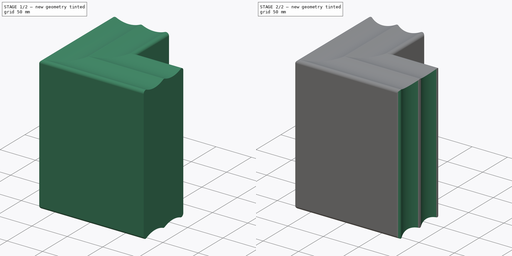
[diagram: build sequence overview — one tinted view per stage of 2, left to right]
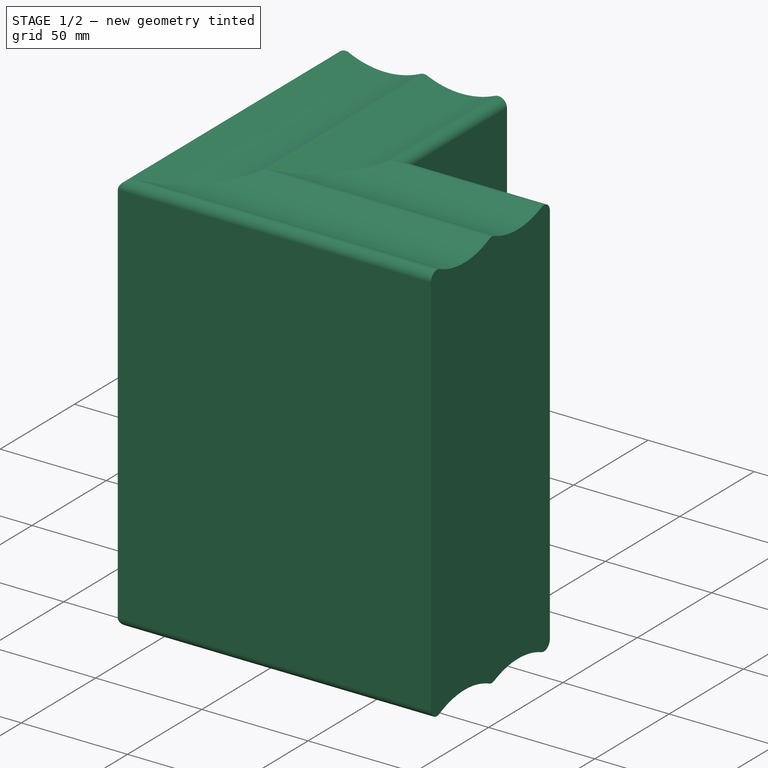
[diagram: stage 1 of 2 — iso view after this stage's code; geometry added in this stage tinted green]
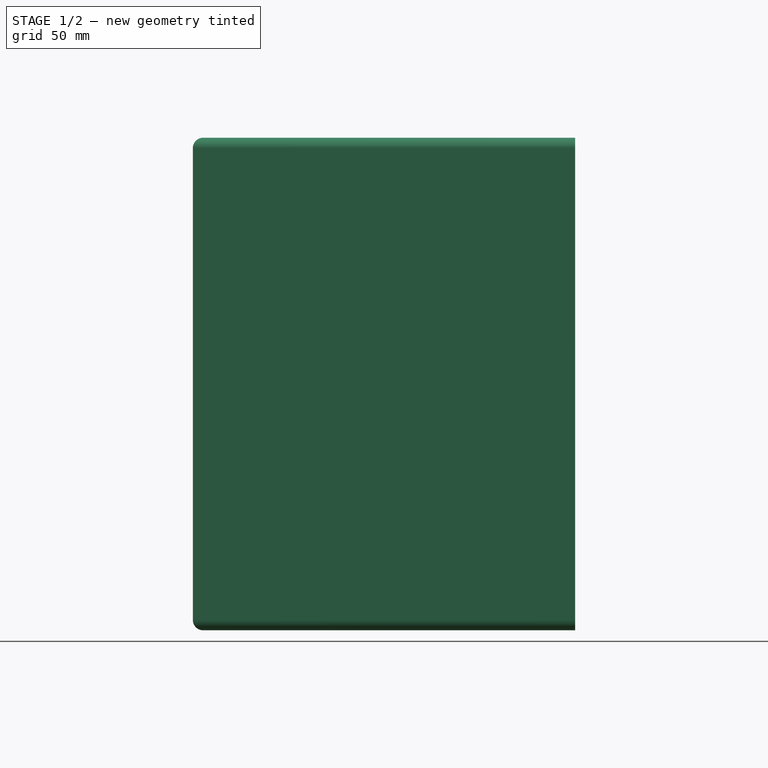
[diagram: stage 1 of 2 — front view after this stage's code; geometry added in this stage tinted green]
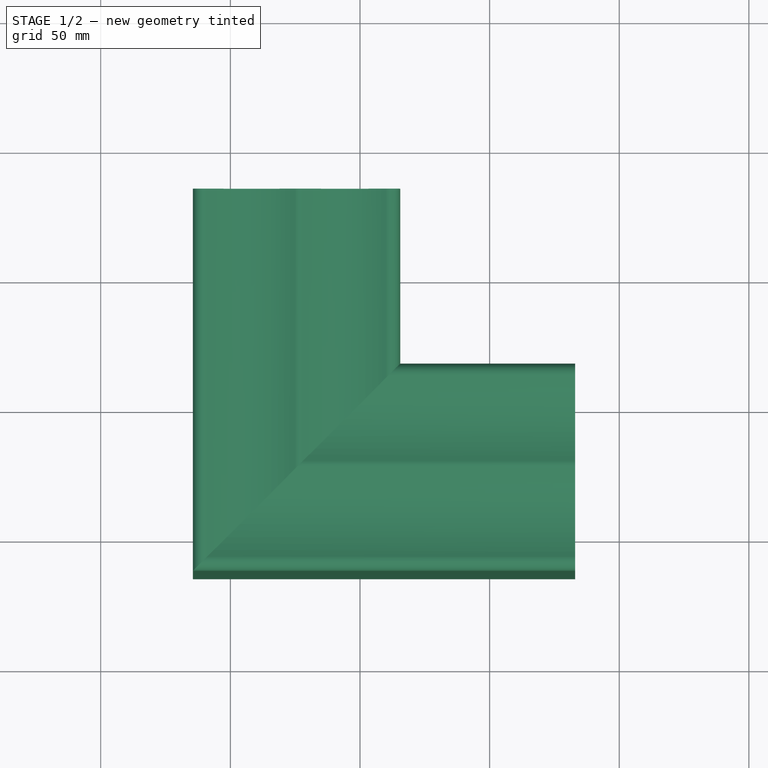
[diagram: stage 1 of 2 — top view after this stage's code; geometry added in this stage tinted green]
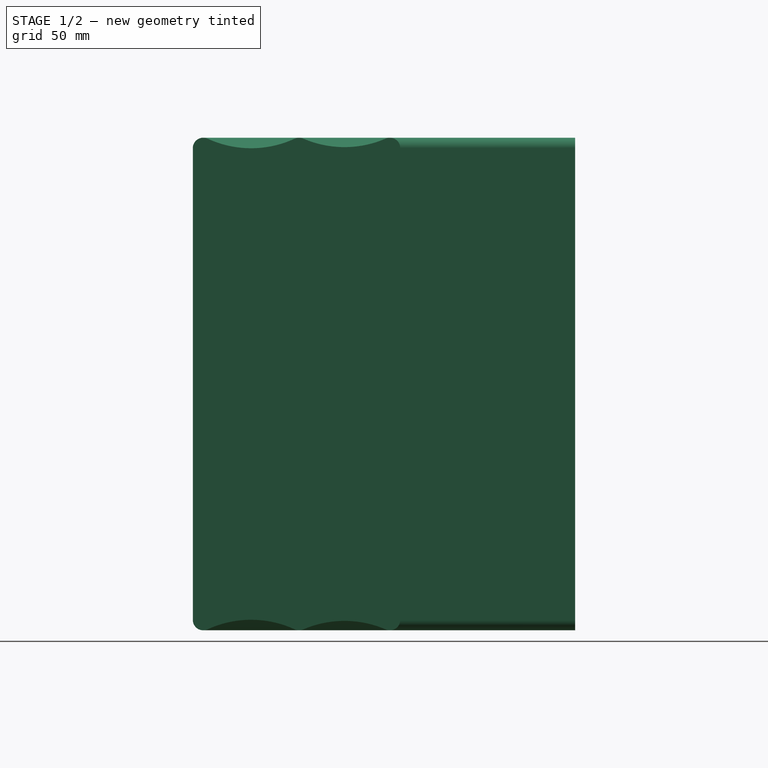
[diagram: stage 1 of 2 — right view after this stage's code; geometry added in this stage tinted green]
FCSTD DOCUMENT  (FreeCAD 0.22R37898 (Git))
Label: esquina para baño
License: All rights reserved
objects: Sketcher::SketchObject×3, PartDesign::Plane×1, PartDesign::AdditivePipe×1, PartDesign::Pocket×1, PartDesign::Body×1
note: 9 computed .brp shape members not serialized (recipe doc carries the construction recipe); baked Part::Feature solids carry a one-line shape summary decoded from their .brp

FEATURE [Sketcher::SketchObject] Sketch
  AttachmentSupport = -> [XY_Plane]
  FullyConstrained = true
  MapMode = 5
  sketch-geometry (8):
    g0: LineSegment StartX=0 StartY=0 StartZ=0 EndX=133 EndY=0 EndZ=0
    g1: LineSegment StartX=133 StartY=0 StartZ=0 EndX=133 EndY=53 EndZ=0
    g2: LineSegment StartX=0 StartY=133 StartZ=0 EndX=0 EndY=0 EndZ=0
    g3: LineSegment StartX=53 StartY=133 StartZ=0 EndX=53 EndY=53 EndZ=0
    g4: LineSegment StartX=0 StartY=133 StartZ=0 EndX=53 EndY=133 EndZ=0
    g5: LineSegment StartX=53 StartY=53 StartZ=0 EndX=133 EndY=53 EndZ=0
    g6: LineSegment StartX=26.5 StartY=133 StartZ=0 EndX=26.5 EndY=26.5 EndZ=0
    g7: LineSegment StartX=26.5 StartY=26.5 StartZ=0 EndX=133 EndY=26.5 EndZ=0
  constraints (22):
    c: Coincident(g0,g1)
    c: Coincident(g2,g0)
    c: Horizontal(g0)
    c: Vertical(g1)
    c: Vertical(g2)
    c: Distance(g1,g2) = 133
    c: Distance(g0,g2) = 133
    c: Coincident(g0,g-1)
    c: Vertical(g3)
    c: Distance(g3,g3) = 80
    c: Coincident(g4,g2)
    c: Coincident(g4,g3)
    c: Horizontal(g4)
    c: Coincident(g5,g3)
    c: Coincident(g5,g1)
    c: Horizontal(g5)
    c: DistanceX(g5,g5) = 80
    c: Symmetric(g1,g0,g7)
    c: Symmetric(g3,g2,g6)
    c: PointOnObject(g6,g4)
    c: PointOnObject(g7,g1)
    c: Coincident(g6,g7)
FEATURE [PartDesign::Plane] DatumPlane
  AttachmentSupport = -> [Sketch,YZ_Plane]
  Length = 224.631
  MapMode = 6
  Placement = pos=(133,26.5,0) rot=(0,1,0;1.5708rad)
  ResizeMode = 0
  Width = 192.436
FEATURE [Sketcher::SketchObject] Sketch001
  AttachmentSupport = -> [DatumPlane]
  FullyConstrained = false
  MapMode = 5
  Placement = pos=(133,26.5,0) rot=(0,1,0;1.5708rad)
  sketch-geometry (16):
    g0: LineSegment StartX=-97.2804 StartY=39.0621 StartZ=0 EndX=-97.2804 EndY=-40.9379 EndZ=0
    g1: LineSegment StartX=-93.2804 StartY=-40.9647 StartZ=0 EndX=88.7196 EndY=-40.9647 EndZ=0
    g2: LineSegment StartX=92.7196 StartY=-40.9647 StartZ=0 EndX=92.7196 EndY=39.0186 EndZ=0
    g3: LineSegment StartX=88.7196 StartY=39.0353 StartZ=0 EndX=-93.2804 EndY=39.0353 EndZ=0
    g4: LineSegment StartX=-97.2804 StartY=-40.9379 StartZ=0 EndX=92.7196 EndY=39.0186 EndZ=0
    g5: LineSegment StartX=-97.2804 StartY=39.0621 StartZ=0 EndX=0 EndY=0 EndZ=0
    g6: ArcOfCircle CenterX=-93.2804 CenterY=35.0353 CenterZ=0 NormalX=0 NormalY=0 NormalZ=1 AngleXU=0 Radius=4 StartAngle=1.5708 EndAngle=3.55107
    g7: ArcOfCircle CenterX=-93.2804 CenterY=0 CenterZ=0 NormalX=0 NormalY=0 NormalZ=1 AngleXU=0 Radius=4 StartAngle=2.73212 EndAngle=3.5751
    g8: ArcOfCircle CenterX=-93.2804 CenterY=-36.9647 CenterZ=0 NormalX=0 NormalY=0 NormalZ=1 AngleXU=0 Radius=4 StartAngle=2.70809 EndAngle=4.71239
    g9: ArcOfCircle CenterX=88.7196 CenterY=35.0353 CenterZ=0 NormalX=0 NormalY=0 NormalZ=1 AngleXU=0 Radius=4 StartAngle=5.87371 EndAngle=7.85398
    g10: ArcOfCircle CenterX=88.7196 CenterY=0 CenterZ=0 NormalX=0 NormalY=0 NormalZ=1 AngleXU=0 Radius=4 StartAngle=5.84968 EndAngle=6.69266
    g11: ArcOfCircle CenterX=88.7196 CenterY=-36.9647 CenterZ=0 NormalX=0 NormalY=0 NormalZ=1 AngleXU=0 Radius=4 StartAngle=4.71239 EndAngle=6.71669
    g12: ArcOfCircle CenterX=129.082 CenterY=17.5176 CenterZ=0 NormalX=0 NormalY=0 NormalZ=1 AngleXU=0 Radius=40 StartAngle=2.73212 EndAngle=3.55107
    g13: ArcOfCircle CenterX=128.65 CenterY=-18.4824 CenterZ=0 NormalX=0 NormalY=0 NormalZ=1 AngleXU=0 Radius=40 StartAngle=2.70809 EndAngle=3.5751
    g14: ArcOfCircle CenterX=-133.643 CenterY=17.5176 CenterZ=0 NormalX=0 NormalY=0 NormalZ=1 AngleXU=0 Radius=40 StartAngle=5.87371 EndAngle=6.69266
    g15: ArcOfCircle CenterX=-133.21 CenterY=-18.4824 CenterZ=0 NormalX=0 NormalY=0 NormalZ=1 AngleXU=0 Radius=40 StartAngle=5.84968 EndAngle=6.71669
  constraints (45):
    c: Vertical(g0)
    c: Vertical(g2)
    c: Horizontal(g1)
    c: Horizontal(g3)
    c: Distance(g0,g2) = 190
    c: Distance(g0,g0) = 80
    c: Coincident(g4,g0)
    c: Coincident(g4,g2)
    c: Coincident(g5,g0)
    c: PointOnObject(g5,g4)
    c: Coincident(g5,g-1)
    c: Diameter(g6) = 8
    c: Equal(g9,g10)
    c: Equal(g10,g11)
    c: Equal(g11,g8)
    c: Equal(g8,g7)
    c: Equal(g7,g6)
    c: Distance(g5,g5) = 104.83
    c: PointOnObject(g7,g-1)
    c: Tangent(g7,g0)
    c: Tangent(g8,g0)
    c: Tangent(g6,g0)
    c: Tangent(g9,g2)
    c: PointOnObject(g10,g-1)
    c: Tangent(g10,g2)
    c: Tangent(g11,g2)
    c: Diameter(g15) = 80
    c: Equal(g15,g14)
    c: Equal(g14,g13)
    c: Equal(g13,g12)
    c: Tangent(g7,g15) = 1.5708
    c: Tangent(g7,g14) = 1.5708
    c: Tangent(g15,g8) = 1.5708
    c: Tangent(g14,g6) = 1.5708
    c: Tangent(g12,g9) = 1.5708
    c: Tangent(g13,g10) = 1.5708
    c: Tangent(g12,g10) = 1.5708
    c: Tangent(g13,g11) = 1.5708
    c: Tangent(g1,g8) = -1.5708
    c: Tangent(g1,g11) = -1.5708
    c: Tangent(g3,g9) = -1.5708
    c: Tangent(g3,g6) = -1.5708
    c: Angle(g5,g4) = 0.780162
    c: Distance(g1,g3) = 80
    c: Block(g3)
FEATURE [Sketcher::SketchObject] Sketch002
  AttachmentSupport = -> [XY_Plane]
  FullyConstrained = false
  MapMode = 5
  sketch-geometry (27):
    g0: LineSegment StartX=132.994 StartY=61.623 StartZ=0 EndX=133.002 EndY=60.8636 EndZ=0
    g1: LineSegment StartX=-10.6392 StartY=132.805 StartZ=0 EndX=62.3608 EndY=132.805 EndZ=0
    g2: LineSegment StartX=-14.6392 StartY=128.805 StartZ=0 EndX=-14.6392 EndY=-14.5652 EndZ=0
    g3: LineSegment StartX=128.048 StartY=-14.5652 StartZ=0 EndX=-14.6392 EndY=-14.5652 EndZ=0
    g4: ArcOfCircle CenterX=-10.6392 CenterY=128.805 CenterZ=0 NormalX=0 NormalY=0 NormalZ=1 AngleXU=0 Radius=4 StartAngle=1.03435 EndAngle=3.14159
    g5: LineSegment StartX=129.015 StartY=65.8348 StartZ=0 EndX=66.3608 EndY=65.8348 EndZ=0
    g6: LineSegment StartX=66.3608 StartY=128.805 StartZ=0 EndX=66.3608 EndY=65.8348 EndZ=0
    g7: ArcOfCircle CenterX=62.3608 CenterY=128.805 CenterZ=0 NormalX=0 NormalY=0 NormalZ=1 AngleXU=0 Radius=4 StartAngle=-2.7e-15 EndAngle=2.01445
    g8: ArcOfCircle CenterX=129.015 CenterY=61.8348 CenterZ=0 NormalX=0 NormalY=0 NormalZ=1 AngleXU=0 Radius=4 StartAngle=5.87794 EndAngle=7.85398
    g9: ArcOfCircle CenterX=128.048 CenterY=-10.5652 CenterZ=0 NormalX=0 NormalY=0 NormalZ=1 AngleXU=0 Radius=4 StartAngle=4.71239 EndAngle=6.68133
    g10: ArcOfCircle CenterX=129.357 CenterY=26.3814 CenterZ=0 NormalX=0 NormalY=0 NormalZ=1 AngleXU=0 Radius=4 StartAngle=5.81419 EndAngle=6.76561
    g11: ArcOfCircle CenterX=26.5947 CenterY=128.805 CenterZ=0 NormalX=0 NormalY=0 NormalZ=1 AngleXU=0 Radius=4 StartAngle=1.20365 EndAngle=1.96229
    g12: LineSegment StartX=-50.7172 StartY=26.4425 StartZ=0 EndX=200.537 EndY=26.3572 EndZ=0
    g13: LineSegment StartX=26.6084 StartY=167.404 StartZ=0 EndX=26.5203 EndY=-81.551 EndZ=0
    g14: ArcOfCircle CenterX=169.451 CenterY=44.488 CenterZ=0 NormalX=0 NormalY=0 NormalZ=1 AngleXU=0 Radius=40 StartAngle=5.76595 EndAngle=8.56679
    g15: ArcOfCircle CenterX=168.606 CenterY=6.4939 CenterZ=0 NormalX=0 NormalY=0 NormalZ=1 AngleXU=0 Radius=40 StartAngle=2.6726 EndAngle=3.53973
    g16: ArcOfCircle CenterX=8.60899 CenterY=169.026 CenterZ=0 NormalX=0 NormalY=0 NormalZ=1 AngleXU=0 Radius=40.0593 StartAngle=1.10766 EndAngle=4.06546
    g17: LineSegment StartX=128.048 StartY=-14.5652 StartZ=0 EndX=142.386 EndY=-23.7136 EndZ=0
    g18: ArcOfCircle CenterX=168.606 CenterY=6.4939 CenterZ=0 NormalX=0 NormalY=0 NormalZ=1 AngleXU=0 Radius=40 StartAngle=3.99753 EndAngle=6.75598
    g19: LineSegment StartX=129.015 StartY=65.8348 StartZ=0 EndX=143.292 EndY=74.7492 EndZ=0
    g20: ArcOfCircle CenterX=169.451 CenterY=44.488 CenterZ=0 NormalX=0 NormalY=0 NormalZ=1 AngleXU=0 Radius=40 StartAngle=2.73635 EndAngle=3.55996
    g21: LineSegment StartX=-14.6392 StartY=128.805 StartZ=0 EndX=-15.5364 EndY=137.061 EndZ=0
    g22: LineSegment StartX=66.3608 StartY=128.805 StartZ=0 EndX=68.656 EndY=137.25 EndZ=0
    g23: ArcOfCircle CenterX=44.4939 CenterY=169.133 CenterZ=0 NormalX=0 NormalY=0 NormalZ=1 AngleXU=0 Radius=40.0042 StartAngle=5.36089 EndAngle=8.32036
    g24: ArcOfCircle CenterX=44.4728 CenterY=169.116 CenterZ=0 NormalX=0 NormalY=0 NormalZ=1 AngleXU=0 Radius=40.1032 StartAngle=4.28994 EndAngle=5.12744
    g25: ArcOfCircle CenterX=7.95527 CenterY=168.931 CenterZ=0 NormalX=0 NormalY=0 NormalZ=1 AngleXU=0 Radius=40.2482 StartAngle=4.28862 EndAngle=5.15156
    g26: Circle CenterX=-12.0039 CenterY=-11.9859 CenterZ=0 NormalX=0 NormalY=0 NormalZ=1 AngleXU=0 Radius=2.5
  constraints (52):
    c: Vertical(g2)
    c: Horizontal(g3)
    c: Coincident(g2,g3)
    c: Horizontal(g5)
    c: Vertical(g6)
    c: Coincident(g6,g5)
    c: Equal(g11,g7)
    c: Equal(g7,g4)
    c: Diameter(g11) = 8
    c: Equal(g8,g10)
    c: Equal(g10,g9)
    c: Diameter(g8) = 8
    c: PointOnObject(g10,g12)
    c: Tangent(g10,g0)
    c: PointOnObject(g11,g13)
    c: Tangent(g11,g1)
    c: Equal(g15,g14)
    c: Diameter(g14) = 80
    c: Tangent(g14,g8)
    c: Tangent(g16,g11)
    c: Coincident(g18,g14)
    c: Coincident(g10,g20) = 1.5708
    c: Tangent(g10,g15) = 1.5708
    c: Tangent(g9,g3) = 1.5708
    c: Coincident(g17,g3)
    c: Equal(g15,g18)
    c: Coincident(g18,g17)
    c: Coincident(g15,g18)
    c: Tangent(g15,g9) = 1.5708
    c: Coincident(g19,g5)
    c: Equal(g14,g20)
    c: Coincident(g14,g19)
    c: Coincident(g14,g20)
    c: Tangent(g8,g5) = -1.5708
    c: Tangent(g1,g4) = 1.5708
    c: Tangent(g1,g7) = 1.5708
    c: Coincident(g21,g2)
    c: Tangent(g4,g2) = -1.5708
    c: Coincident(g16,g23)
    c: Coincident(g16,g21)
    c: Coincident(g22,g6)
    c: Tangent(g7,g6) = 1.5708
    c: Coincident(g23,g22)
    c: Coincident(g24,g7) = 1.5708
    c: Coincident(g11,g25)
    c: Coincident(g11,g24)
    c: Coincident(g25,g4)
    c: Coincident(g20,g8)
    c: Distance(g3,g5) = 80.4
    c: Distance(g6,g2) = 81
    c: Horizontal(g1)
    c: Diameter(g26) = 5
FEATURE [PartDesign::AdditivePipe] AdditivePipe
  AuxilleryCurvelinear = true
  AuxillerySpineTangent = false
  Binormal = (0,0,0)
  Mode = 0
  Placement = pos=(133,26.5,0) rot=(0,1,0;1.5708rad)
  Profile = -> Sketch001
  Refine = true
  Spine = -> Sketch [Edge4,Edge3]
  SpineTangent = false
  Suppressed = false
  Transformation = 0
  Transition = 1
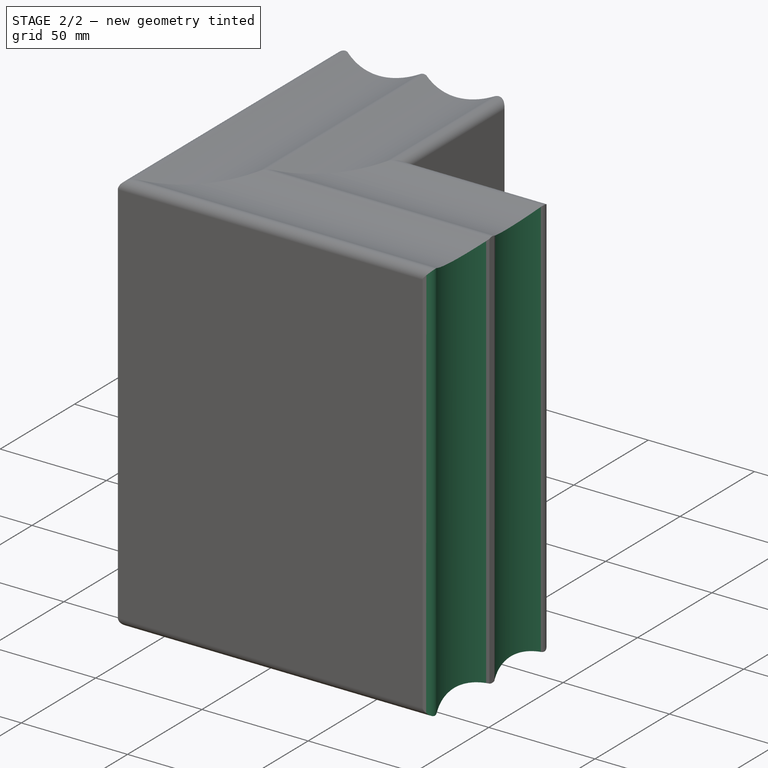
[diagram: stage 2 of 2 — iso view after this stage's code; geometry added in this stage tinted green]
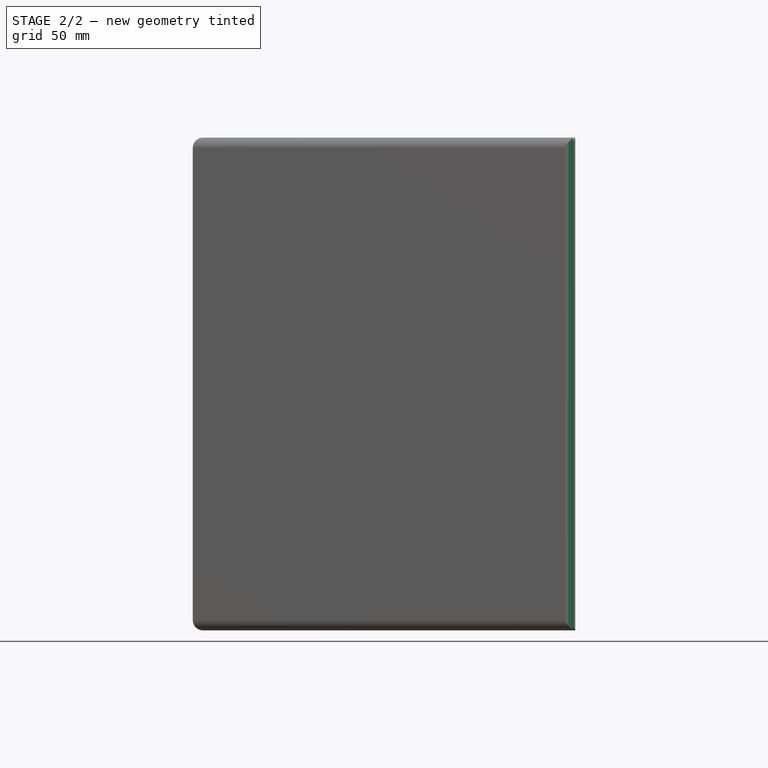
[diagram: stage 2 of 2 — front view after this stage's code; geometry added in this stage tinted green]
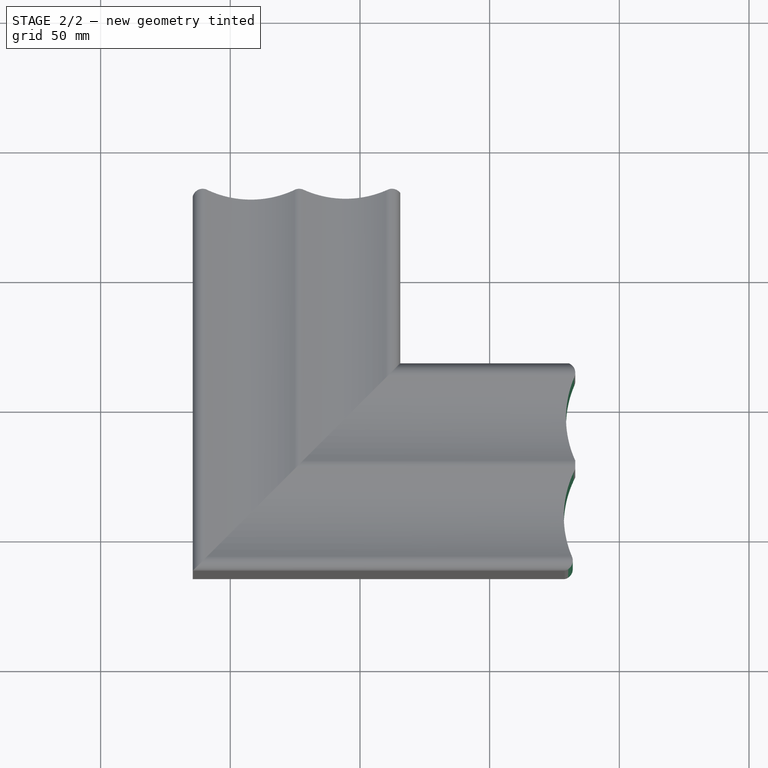
[diagram: stage 2 of 2 — top view after this stage's code; geometry added in this stage tinted green]
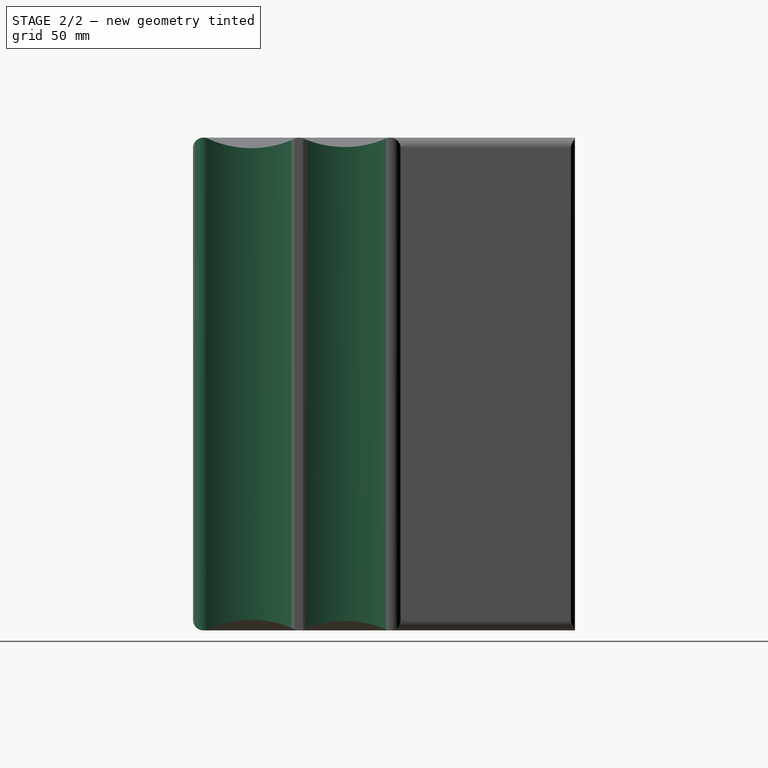
[diagram: stage 2 of 2 — right view after this stage's code; geometry added in this stage tinted green]
FEATURE [PartDesign::Pocket] Pocket
  BaseFeature = -> AdditivePipe
  Direction = (1,1,1)
  Length = 5
  Length2 = 5
  Midplane = true
  Placement = pos=(133,26.5,0) rot=(0,1,0;1.5708rad)
  Profile = -> Sketch002
  ReferenceAxis = -> Sketch002 [N_Axis]
  Refine = true
  Suppressed = false
  Type = 1
FEATURE [PartDesign::Body] Body
  AllowCompound = false
  Group = -> [Sketch,DatumPlane,Sketch001,Sketch002,AdditivePipe,Pocket]
  Origin = -> Origin
  Tip = -> Pocket
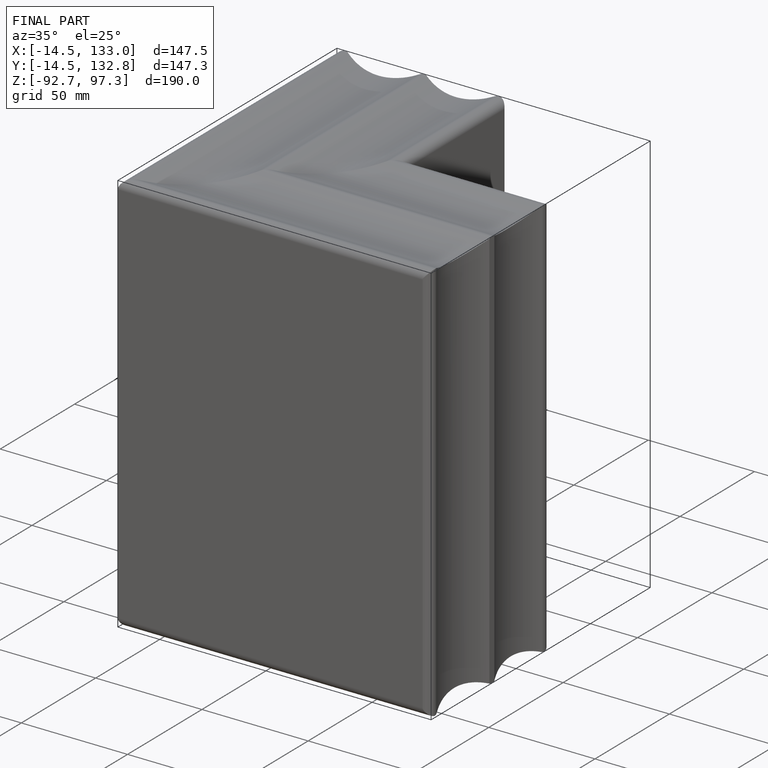
[diagram: finished part — iso view with bounding-box wireframe]
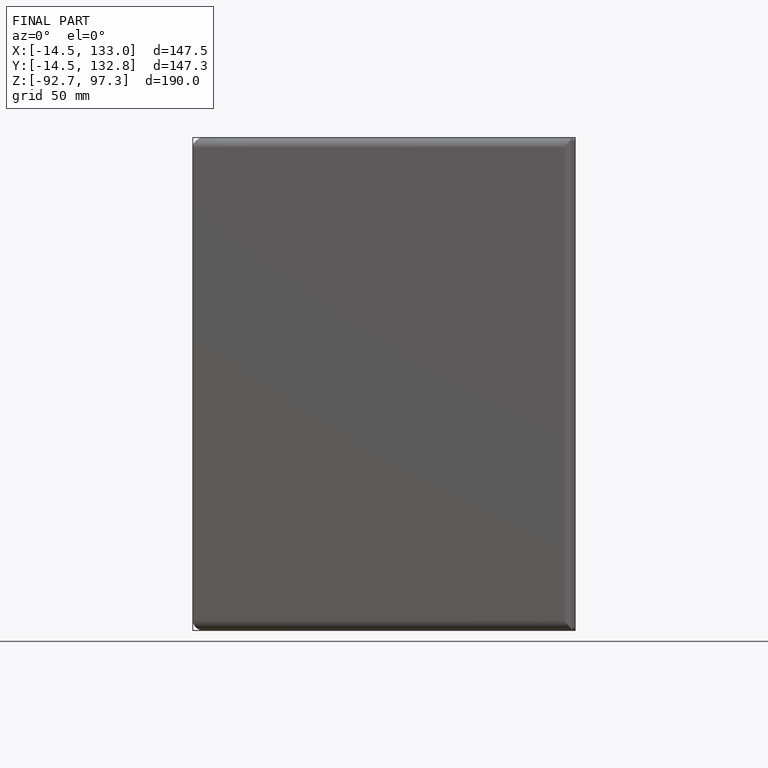
[diagram: finished part — front view with bounding-box wireframe]
